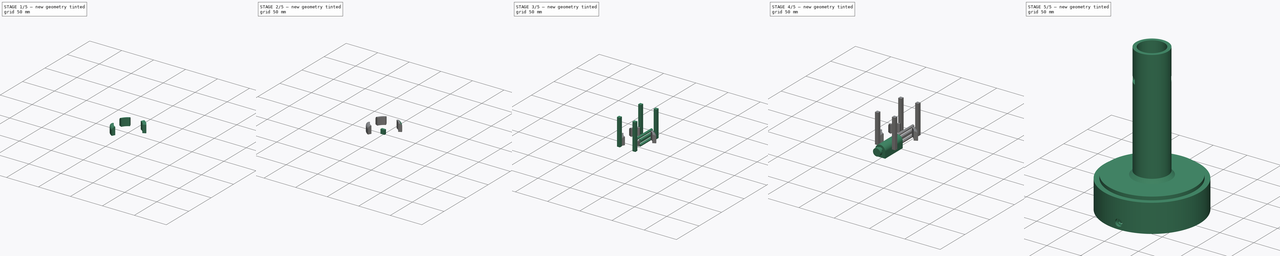
[diagram: build sequence overview — one tinted view per stage of 5, left to right]
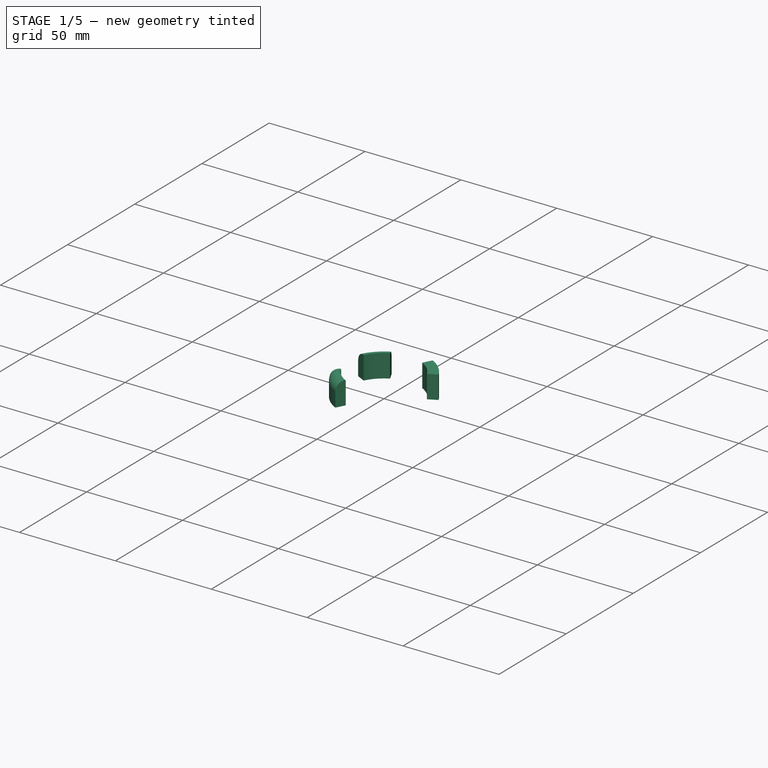
[diagram: stage 1 of 5 — iso view after this stage's code; geometry added in this stage tinted green]
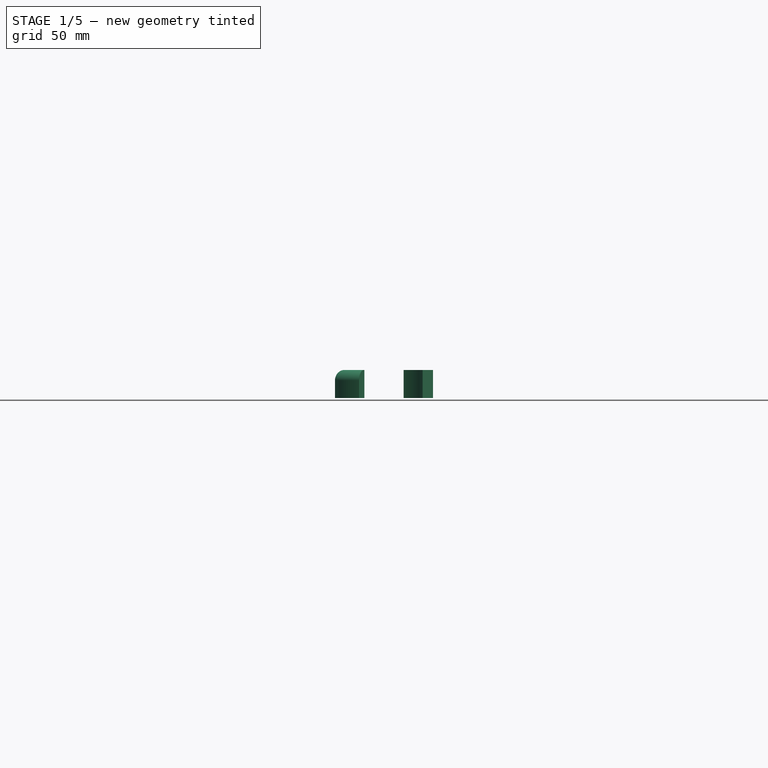
[diagram: stage 1 of 5 — front view after this stage's code; geometry added in this stage tinted green]
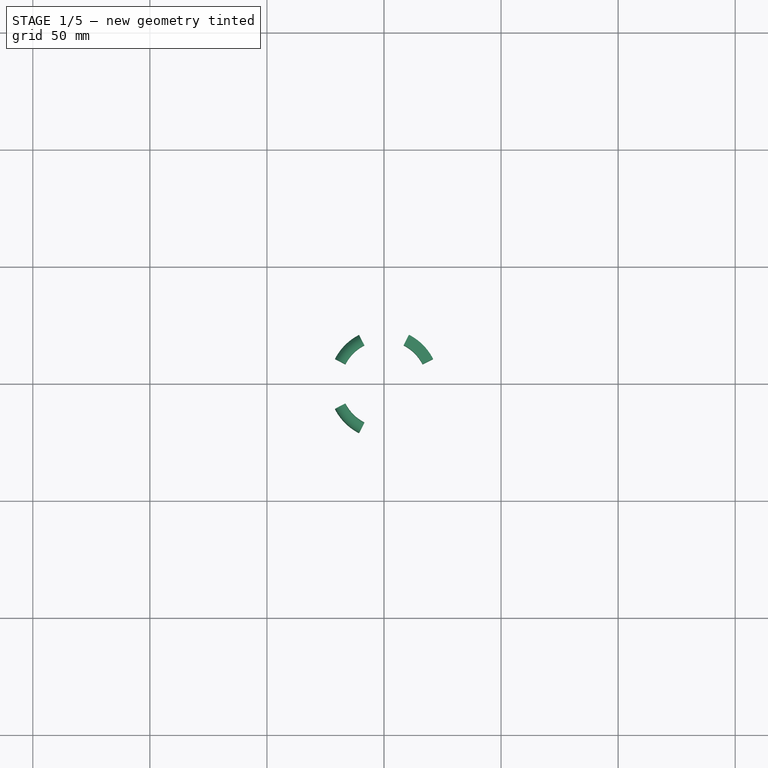
[diagram: stage 1 of 5 — top view after this stage's code; geometry added in this stage tinted green]
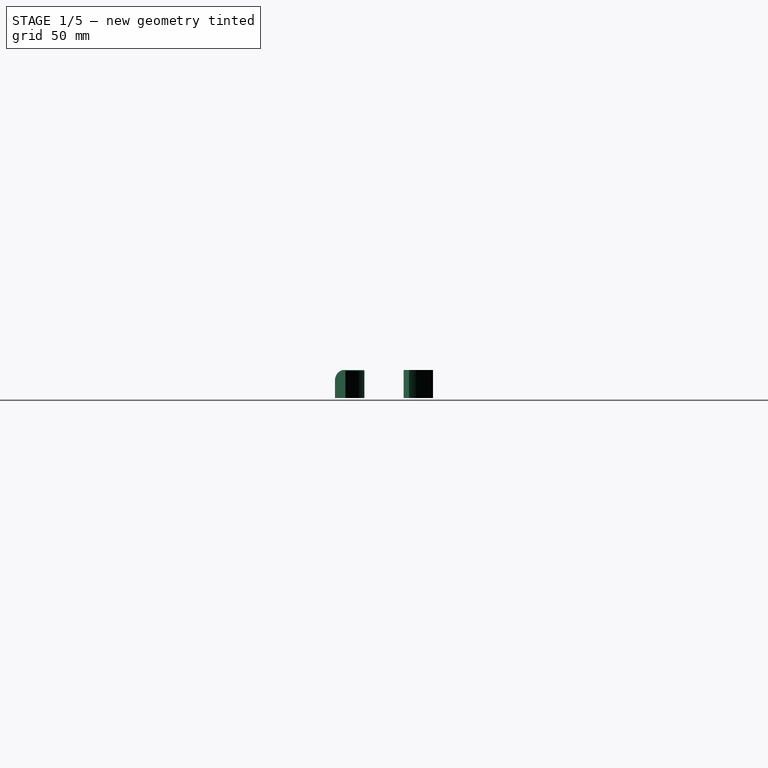
[diagram: stage 1 of 5 — right view after this stage's code; geometry added in this stage tinted green]
FCSTD DOCUMENT  (FreeCAD 1.0R)
Label: GyverLamp1
License: All rights reserved
LicenseURL: https://en.wikipedia.org/wiki/All_rights_reserved
objects: Sketcher::SketchObject×9, PartDesign::Pad×8, PartDesign::Body×6, PartDesign::Fillet×6, PartDesign::Boolean×4, PartDesign::Revolution×1, App::Part×1
note: 77 computed .brp shape members not serialized (recipe doc carries the construction recipe); baked Part::Feature solids carry a one-line shape summary decoded from their .brp

FEATURE [PartDesign::Body] Body005  label="SW Base"
  AllowCompound = true
  Group = -> [Sketch007,Pad005,Sketch008,Pad006]
  Origin = -> Origin007
  Placement = pos=(0,66.9,20) rot=(0,0,1;3.14159rad)
  Tip = -> Pad006
FEATURE [Sketcher::SketchObject] Sketch009
  ArcFitTolerance = 1e-06
  AttachmentSupport = -> [XY_Plane008]
  FullyConstrained = true
  MakeInternals = false
  MapMode = 5
  sketch-geometry (21):
    g0: Circle [constr] CenterX=0 CenterY=0 CenterZ=0 NormalX=0 NormalY=0 NormalZ=1 AngleXU=0 Radius=23.5
    g1: Circle [constr] CenterX=0 CenterY=0 CenterZ=0 NormalX=0 NormalY=0 NormalZ=1 AngleXU=0 Radius=18.5
    g2: LineSegment [constr] StartX=0 StartY=0 StartZ=0 EndX=-10.6688 EndY=20.9387 EndZ=0
    g3: LineSegment [constr] StartX=0 StartY=0 StartZ=0 EndX=-20.9387 EndY=10.6688 EndZ=0
    g4: ArcOfCircle CenterX=0 CenterY=0 CenterZ=0 NormalX=0 NormalY=0 NormalZ=1 AngleXU=0 Radius=23.5 StartAngle=2.04204 EndAngle=2.67035
    g5: LineSegment [constr] StartX=0 StartY=0 StartZ=0 EndX=-20.9387 EndY=-10.6688 EndZ=0
    g6: LineSegment [constr] StartX=0 StartY=0 StartZ=0 EndX=-10.6688 EndY=-20.9387 EndZ=0
    g7: ArcOfCircle CenterX=0 CenterY=0 CenterZ=0 NormalX=0 NormalY=0 NormalZ=1 AngleXU=0 Radius=23.5 StartAngle=3.61283 EndAngle=4.24115
    g8: ArcOfCircle CenterX=0 CenterY=0 CenterZ=0 NormalX=0 NormalY=0 NormalZ=1 AngleXU=0 Radius=18.5 StartAngle=0.471239 EndAngle=1.09956
    g9: ArcOfCircle CenterX=0 CenterY=0 CenterZ=0 NormalX=0 NormalY=0 NormalZ=1 AngleXU=0 Radius=23.5 StartAngle=0.471239 EndAngle=1.09956
    g10: LineSegment StartX=10.6688 StartY=20.9387 StartZ=0 EndX=8.39882 EndY=16.4836 EndZ=0
    g11: LineSegment StartX=20.9387 StartY=10.6688 StartZ=0 EndX=16.4836 EndY=8.39882 EndZ=0
    g12: LineSegment [constr] StartX=10.6688 StartY=20.9387 StartZ=0 EndX=-5e-16 EndY=-6e-16 EndZ=0
    g13: LineSegment [constr] StartX=0 StartY=0 StartZ=0 EndX=20.9387 EndY=10.6688 EndZ=0
    g14: ArcOfCircle [constr] CenterX=0 CenterY=0 CenterZ=0 NormalX=0 NormalY=0 NormalZ=1 AngleXU=0 Radius=18.5 StartAngle=2.04204 EndAngle=2.67035
    g15: ArcOfCircle CenterX=0 CenterY=0 CenterZ=0 NormalX=0 NormalY=0 NormalZ=1 AngleXU=0 Radius=18.5 StartAngle=2.04204 EndAngle=2.67035
    g16: LineSegment StartX=-20.9387 StartY=10.6688 StartZ=0 EndX=-16.4836 EndY=8.39882 EndZ=0
    g17: LineSegment StartX=-8.39882 StartY=16.4836 StartZ=0 EndX=-10.6688 EndY=20.9387 EndZ=0
    g18: ArcOfCircle CenterX=0 CenterY=0 CenterZ=0 NormalX=0 NormalY=0 NormalZ=1 AngleXU=0 Radius=18.5 StartAngle=3.61283 EndAngle=4.24115
    g19: LineSegment StartX=-10.6688 StartY=-20.9387 StartZ=0 EndX=-8.39882 EndY=-16.4836 EndZ=0
    g20: LineSegment StartX=-20.9387 StartY=-10.6688 StartZ=0 EndX=-16.4836 EndY=-8.39882 EndZ=0
  constraints (57):
    c: Diameter(g0) = 47
    c: PointOnObject(g0,g-2)
    c: PointOnObject(g0,g-1)
    c: Diameter(g1) = 37
    c: PointOnObject(g1,g-1)
    c: Coincident(g2,g0)
    c: PointOnObject(g2,g0)
    c: Coincident(g3,g0)
    c: Coincident(g4,g0)
    c: Coincident(g4,g3)
    c: Coincident(g4,g2)
    c: Angle(g2,g3) = 0.628319
    c: Coincident(g5,g0)
    c: Coincident(g6,g0)
    c: PointOnObject(g6,g0)
    c: Coincident(g7,g0)
    c: Coincident(g7,g5)
    c: Coincident(g7,g6)
    c: Angle(g2,g5) = 1.5708
    c: Angle(g5,g6) = 0.628319
    c: Coincident(g8,g1)
    c: PointOnObject(g8,g1)
    c: Coincident(g9,g0)
    c: PointOnObject(g9,g0)
    c: Coincident(g10,g9)
    c: Coincident(g10,g8)
    c: Coincident(g11,g9)
    c: Coincident(g11,g8)
    c: Coincident(g12,g9)
    c: Coincident(g12,g0)
    c: Coincident(g13,g0)
    c: Coincident(g13,g9)
    c: PointOnObject(g8,g13)
    c: PointOnObject(g10,g12)
    c: Angle(g-1,g13) = 0.471239
    c: Angle(g13,g12) = 0.628319
    c: PointOnObject(g1,g-2)
    c: Angle(g13,g2) = 1.5708
    c: Coincident(g14,g0)
    c: PointOnObject(g14,g2)
    c: PointOnObject(g14,g1)
    c: Coincident(g15,g0)
    c: Coincident(g15,g14)
    c: Coincident(g17,g15)
    c: Coincident(g17,g2)
    c: Coincident(g14,g16)
    c: Coincident(g3,g16)
    c: PointOnObject(g14,g3)
    c: PointOnObject(g15,g2)
    c: Coincident(g18,g0)
    c: PointOnObject(g18,g5)
    c: PointOnObject(g18,g1)
    c: Coincident(g19,g6)
    c: Coincident(g19,g18)
    c: Coincident(g20,g5)
    c: Coincident(g20,g18)
    c: PointOnObject(g18,g6)
FEATURE [PartDesign::Pad] Pad007
  Direction = (0,0,1)
  Length = 12
  Length2 = 10
  Profile = -> Sketch009
  ReferenceAxis = -> Sketch009 [N_Axis]
  Refine = true
  Suppressed = false
  Type = 0
FEATURE [PartDesign::Fillet] Fillet
  Base = -> Pad007 [Edge4]
  BaseFeature = -> Pad007
  Radius = 4.5
  Refine = true
  SupportTransform = false
  Suppressed = false
  UseAllEdges = false
FEATURE [PartDesign::Fillet] Fillet001
  Base = -> Fillet [Edge15]
  BaseFeature = -> Fillet
  Radius = 0.45
  Refine = true
  SupportTransform = false
  Suppressed = false
  UseAllEdges = false
FEATURE [PartDesign::Fillet] Fillet002
  Base = -> Fillet001 [Edge25]
  BaseFeature = -> Fillet001
  Radius = 4.5
  Refine = true
  SupportTransform = false
  Suppressed = false
  UseAllEdges = false
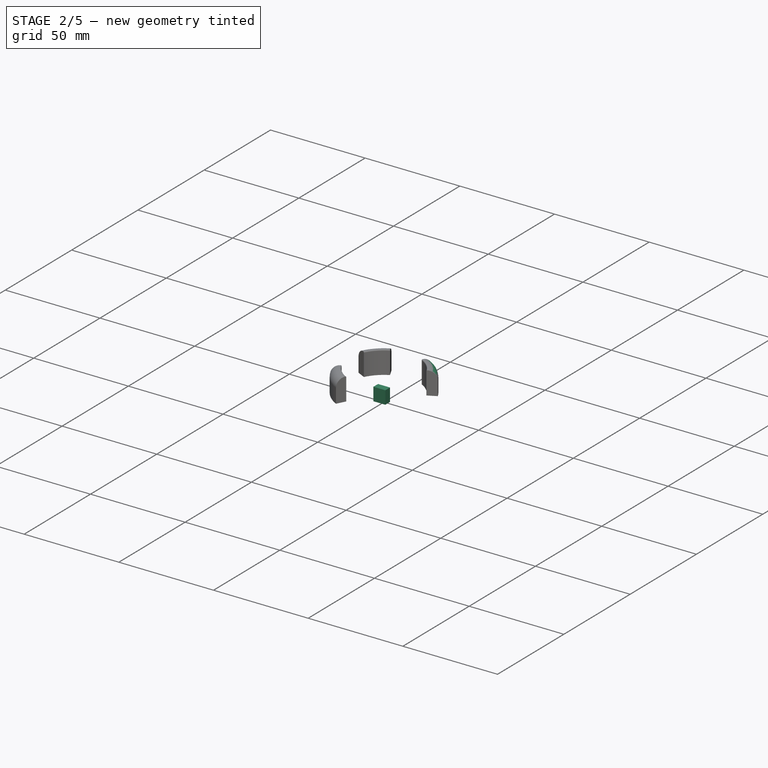
[diagram: stage 2 of 5 — iso view after this stage's code; geometry added in this stage tinted green]
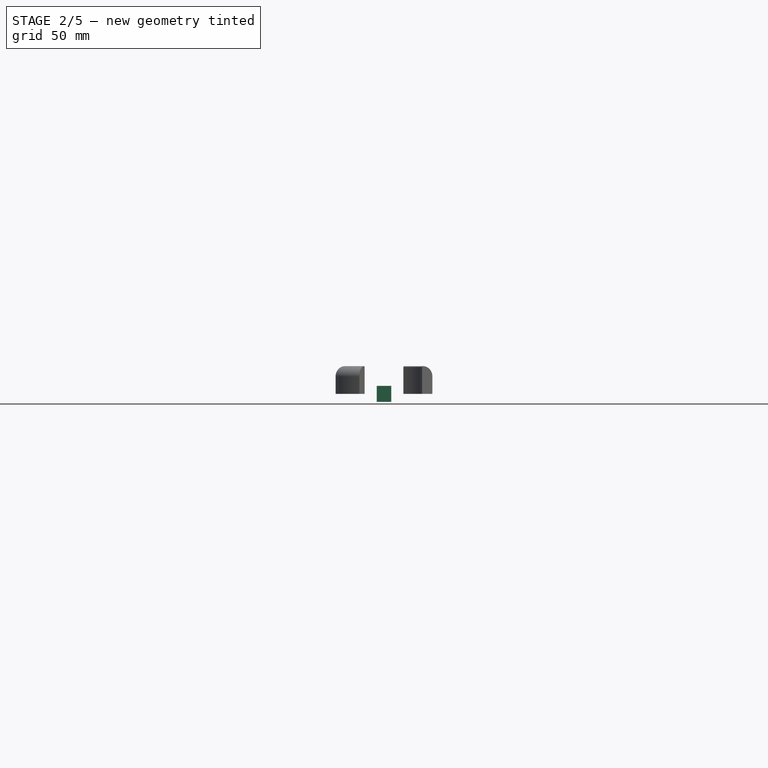
[diagram: stage 2 of 5 — front view after this stage's code; geometry added in this stage tinted green]
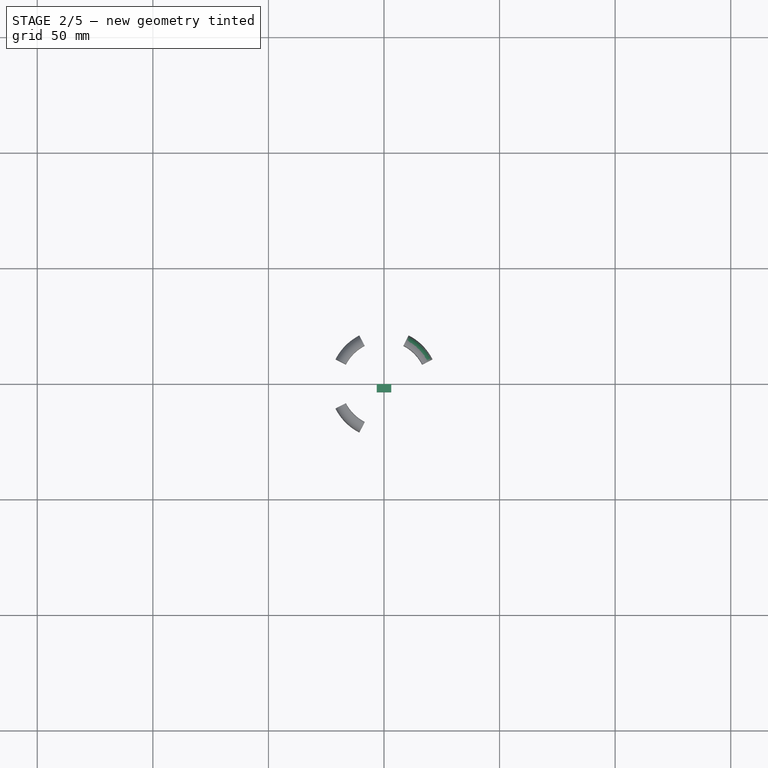
[diagram: stage 2 of 5 — top view after this stage's code; geometry added in this stage tinted green]
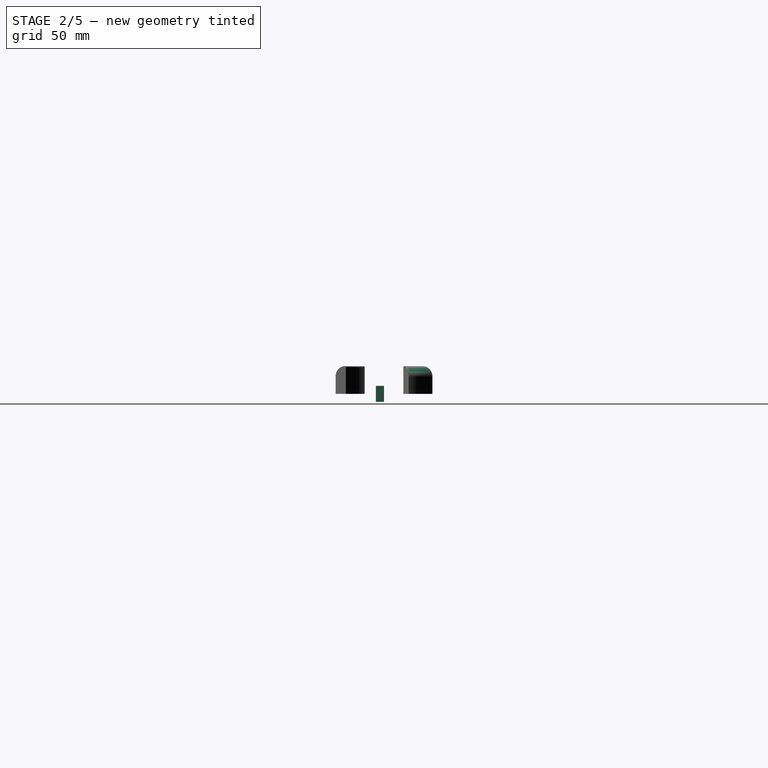
[diagram: stage 2 of 5 — right view after this stage's code; geometry added in this stage tinted green]
FEATURE [Sketcher::SketchObject] Sketch007  label="Base"
  ArcFitTolerance = 1e-06
  AttachmentSupport = -> [XZ_Plane007]
  FullyConstrained = true
  MakeInternals = false
  MapMode = 5
  Placement = pos=(0,0,0) rot=(1,0,0;1.5708rad)
  sketch-geometry (4):
    g0: LineSegment StartX=-3.15 StartY=3.45 StartZ=0 EndX=-3.15 EndY=-3.45 EndZ=0
    g1: LineSegment StartX=-3.15 StartY=-3.45 StartZ=0 EndX=3.15 EndY=-3.45 EndZ=0
    g2: LineSegment StartX=3.15 StartY=-3.45 StartZ=0 EndX=3.15 EndY=3.45 EndZ=0
    g3: LineSegment StartX=3.15 StartY=3.45 StartZ=0 EndX=-3.15 EndY=3.45 EndZ=0
  constraints (10):
    c: Coincident(g0,g1)
    c: Coincident(g1,g2)
    c: Coincident(g2,g3)
    c: Coincident(g3,g0)
    c: Vertical(g2)
    c: Horizontal(g1)
    c: Symmetric(g0,g2,g-2)
    c: Symmetric(g0,g0,g-1)
    c: DistanceY(g0,g0) = 6.9
    c: DistanceX(g3,g3) = 6.3
FEATURE [PartDesign::Pad] Pad005
  Direction = (0,-1,2e-16)
  Length = 3.5
  Length2 = 10
  Placement = pos=(0,0,0) rot=(1,0,0;1.5708rad)
  Profile = -> Sketch007
  ReferenceAxis = -> Sketch007 [N_Axis]
  Refine = true
  Suppressed = false
  Type = 0
FEATURE [PartDesign::Fillet] Fillet003
  Base = -> Fillet002 [Edge45]
  BaseFeature = -> Fillet002
  Radius = 4.5
  Refine = true
  SupportTransform = false
  Suppressed = false
  UseAllEdges = false
FEATURE [PartDesign::Fillet] Fillet004
  Base = -> Fillet003 [Edge28]
  BaseFeature = -> Fillet003
  Radius = 0.45
  Refine = true
  SupportTransform = false
  Suppressed = false
  UseAllEdges = false
FEATURE [PartDesign::Fillet] Fillet005
  Base = -> Fillet004 [Edge31]
  BaseFeature = -> Fillet004
  Radius = 0.45
  Refine = true
  SupportTransform = false
  Suppressed = false
  UseAllEdges = false
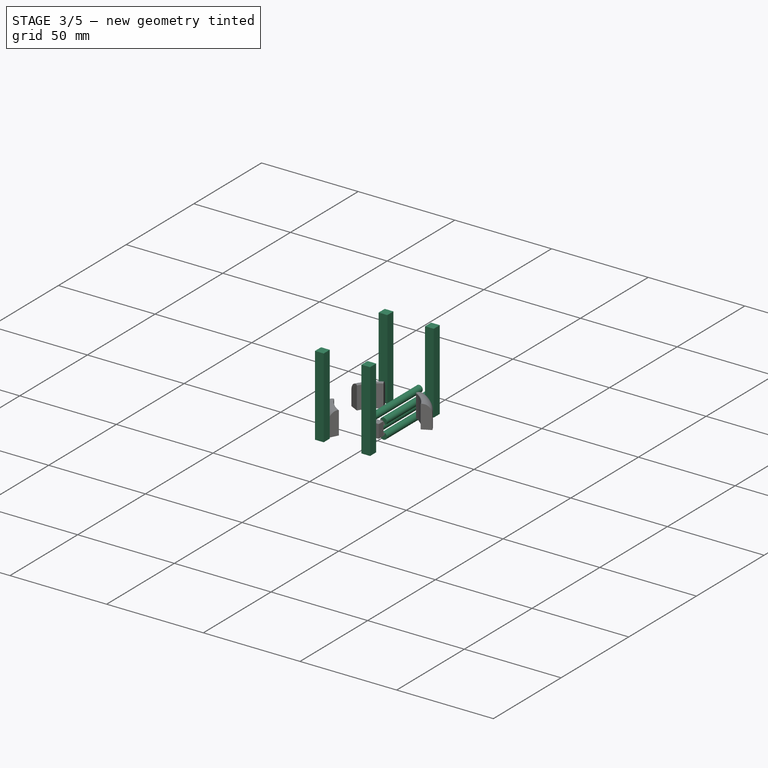
[diagram: stage 3 of 5 — iso view after this stage's code; geometry added in this stage tinted green]
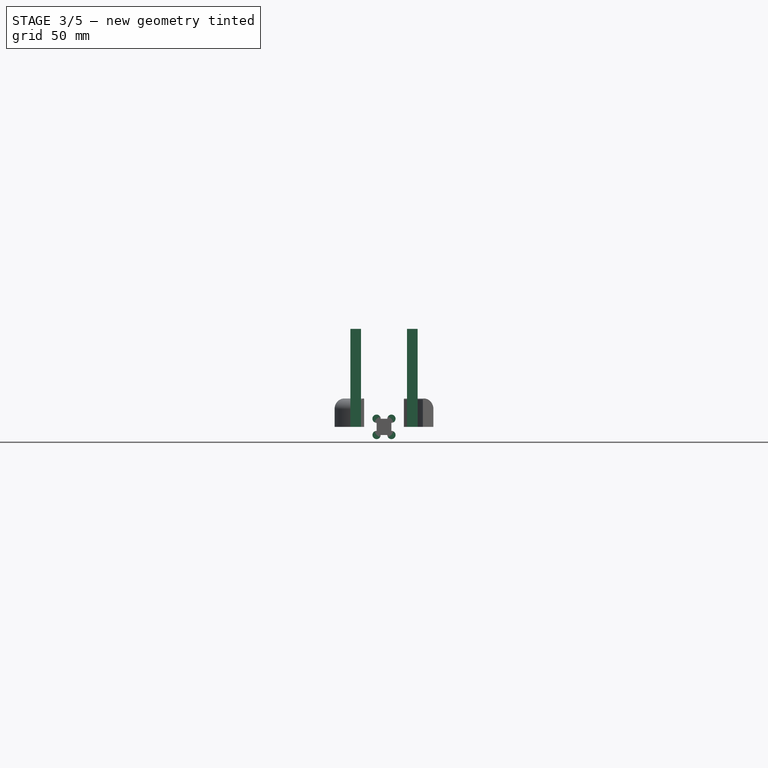
[diagram: stage 3 of 5 — front view after this stage's code; geometry added in this stage tinted green]
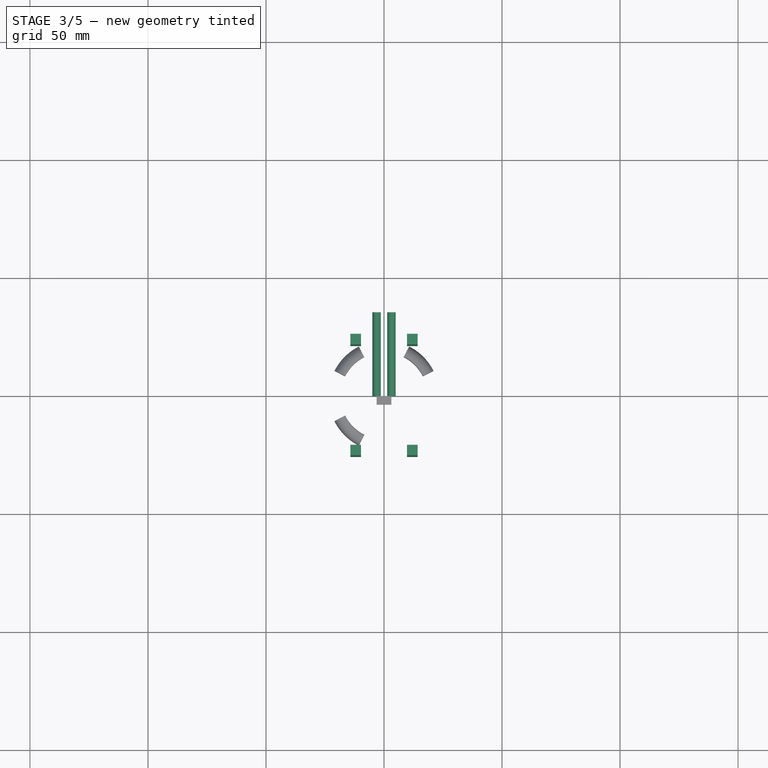
[diagram: stage 3 of 5 — top view after this stage's code; geometry added in this stage tinted green]
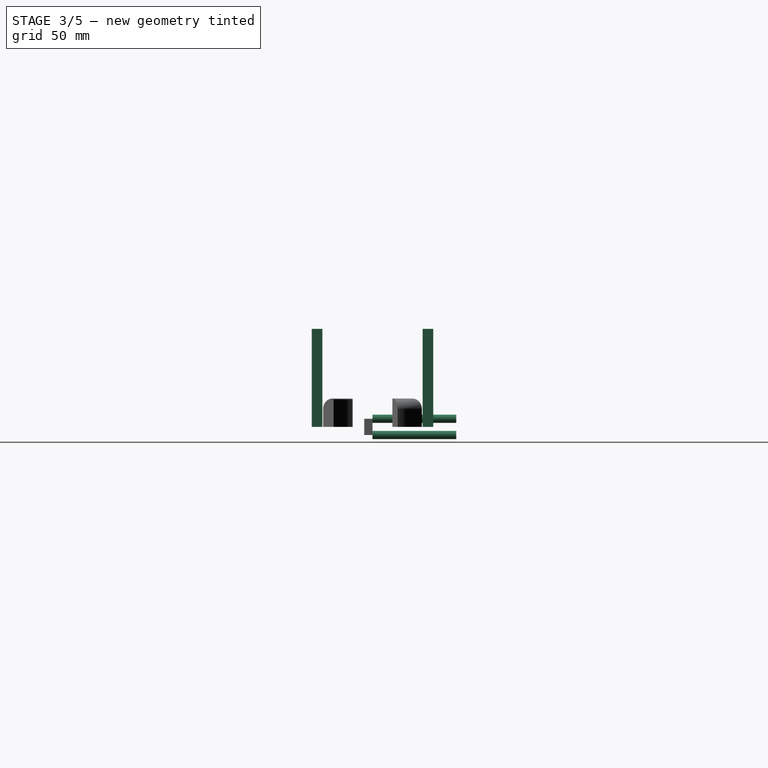
[diagram: stage 3 of 5 — right view after this stage's code; geometry added in this stage tinted green]
FEATURE [Sketcher::SketchObject] Sketch005  label="Pillars"
  ArcFitTolerance = 1e-06
  AttachmentSupport = -> [XY_Plane005]
  FullyConstrained = true
  MakeInternals = false
  MapMode = 5
  sketch-geometry (20):
    g0: LineSegment [constr] StartX=-12 StartY=23.5 StartZ=0 EndX=-12 EndY=-23.5 EndZ=0
    g1: LineSegment [constr] StartX=-12 StartY=-23.5 StartZ=0 EndX=12 EndY=-23.5 EndZ=0
    g2: LineSegment [constr] StartX=12 StartY=-23.5 StartZ=0 EndX=12 EndY=23.5 EndZ=0
    g3: LineSegment [constr] StartX=12 StartY=23.5 StartZ=0 EndX=-12 EndY=23.5 EndZ=0
    g4: LineSegment StartX=14.25 StartY=21.25 StartZ=0 EndX=14.25 EndY=25.75 EndZ=0
    g5: LineSegment StartX=14.25 StartY=25.75 StartZ=0 EndX=9.75 EndY=25.75 EndZ=0
    g6: LineSegment StartX=9.75 StartY=25.75 StartZ=0 EndX=9.75 EndY=21.25 EndZ=0
    g7: LineSegment StartX=9.75 StartY=21.25 StartZ=0 EndX=14.25 EndY=21.25 EndZ=0
    g8: LineSegment StartX=-9.75 StartY=-25.75 StartZ=0 EndX=-9.75 EndY=-21.25 EndZ=0
    g9: LineSegment StartX=-9.75 StartY=-21.25 StartZ=0 EndX=-14.25 EndY=-21.25 EndZ=0
    g10: LineSegment StartX=-14.25 StartY=-21.25 StartZ=0 EndX=-14.25 EndY=-25.75 EndZ=0
    g11: LineSegment StartX=-14.25 StartY=-25.75 StartZ=0 EndX=-9.75 EndY=-25.75 EndZ=0
    g12: LineSegment StartX=14.25 StartY=-25.75 StartZ=0 EndX=14.25 EndY=-21.25 EndZ=0
    g13: LineSegment StartX=14.25 StartY=-21.25 StartZ=0 EndX=9.75 EndY=-21.25 EndZ=0
    g14: LineSegment StartX=9.75 StartY=-21.25 StartZ=0 EndX=9.75 EndY=-25.75 EndZ=0
    g15: LineSegment StartX=9.75 StartY=-25.75 StartZ=0 EndX=14.25 EndY=-25.75 EndZ=0
    g16: LineSegment StartX=-14.25 StartY=25.75 StartZ=0 EndX=-14.25 EndY=21.25 EndZ=0
    g17: LineSegment StartX=-14.25 StartY=21.25 StartZ=0 EndX=-9.75 EndY=21.25 EndZ=0
    g18: LineSegment StartX=-9.75 StartY=21.25 StartZ=0 EndX=-9.75 EndY=25.75 EndZ=0
    g19: LineSegment StartX=-9.75 StartY=25.75 StartZ=0 EndX=-14.25 EndY=25.75 EndZ=0
  constraints (49):
    c: Coincident(g0,g1)
    c: Coincident(g1,g2)
    c: Coincident(g2,g3)
    c: Coincident(g4,g5)
    c: Coincident(g5,g6)
    c: Coincident(g6,g7)
    c: Coincident(g7,g4)
    c: Vertical(g6)
    c: Horizontal(g7)
    c: Coincident(g8,g9)
    c: Coincident(g9,g10)
    c: Coincident(g10,g11)
    c: Coincident(g11,g8)
    c: Vertical(g8)
    c: Horizontal(g9)
    c: Coincident(g12,g13)
    c: Coincident(g13,g14)
    c: Coincident(g14,g15)
    c: Coincident(g15,g12)
    c: Vertical(g14)
    c: Horizontal(g13)
    c: Coincident(g16,g17)
    c: Coincident(g17,g18)
    c: Coincident(g18,g19)
    c: Coincident(g19,g16)
    c: Vertical(g16)
    c: Horizontal(g19)
    c: Symmetric(g17,g16,g0)
    c: Symmetric(g4,g5,g2)
    c: Symmetric(g12,g14,g2)
    c: Symmetric(g8,g10,g0)
    c: Symmetric(g9,g10,g1)
    c: Symmetric(g12,g12,g1)
    c: Symmetric(g4,g4,g3)
    c: Symmetric(g18,g17,g3)
    c: Coincident(g0,g3)
    c: Equal(g19,g5)
    c: Equal(g5,g13)
    c: Equal(g13,g9)
    c: Equal(g6,g14)
    c: Equal(g14,g16)
    c: Equal(g16,g8)
    c: Symmetric(g0,g2,g-2)
    c: Symmetric(g0,g1,g-2)
    c: Symmetric(g2,g1,g-1)
    c: DistanceY(g1,g2) = 47
    c: DistanceX(g0,g1) = 24
    c: Distance(g13,g12) = 4.5
    c: Distance(g14,g13) = 4.5
FEATURE [PartDesign::Pad] Pad003  label="PIllars"
  Direction = (0,0,1)
  Length = 41.5
  Length2 = 10
  Profile = -> Sketch005
  ReferenceAxis = -> Sketch005 [N_Axis]
  Refine = true
  Suppressed = false
  Type = 0
FEATURE [Sketcher::SketchObject] Sketch006  label="Holes"
  ArcFitTolerance = 1e-06
  AttachmentSupport = -> [XY_Plane006]
  FullyConstrained = true
  MakeInternals = false
  MapMode = 5
  sketch-geometry (8):
    g0: LineSegment [constr] StartX=-12 StartY=23.5 StartZ=0 EndX=-12 EndY=-23.5 EndZ=0
    g1: LineSegment [constr] StartX=-12 StartY=-23.5 StartZ=0 EndX=12 EndY=-23.5 EndZ=0
    g2: LineSegment [constr] StartX=12 StartY=-23.5 StartZ=0 EndX=12 EndY=23.5 EndZ=0
    g3: LineSegment [constr] StartX=12 StartY=23.5 StartZ=0 EndX=-12 EndY=23.5 EndZ=0
    g4: Circle CenterX=-12 CenterY=23.5 CenterZ=0 NormalX=0 NormalY=0 NormalZ=1 AngleXU=0 Radius=0.6
    g5: Circle CenterX=12 CenterY=23.5 CenterZ=0 NormalX=0 NormalY=0 NormalZ=1 AngleXU=0 Radius=0.6
    g6: Circle CenterX=12 CenterY=-23.5 CenterZ=0 NormalX=0 NormalY=0 NormalZ=1 AngleXU=0 Radius=0.6
    g7: Circle CenterX=-12 CenterY=-23.5 CenterZ=0 NormalX=0 NormalY=0 NormalZ=1 AngleXU=0 Radius=0.6
  constraints (22):
    c: Coincident(g0,g1)
    c: Coincident(g1,g2)
    c: Coincident(g2,g3)
    c: Coincident(g3,g0)
    c: Vertical(g0)
    c: Vertical(g2)
    c: Horizontal(g1)
    c: Horizontal(g3)
    c: PointOnObject(g5,g2)
    c: PointOnObject(g5,g3)
    c: PointOnObject(g4,g0)
    c: PointOnObject(g7,g0)
    c: PointOnObject(g7,g1)
    c: PointOnObject(g6,g1)
    c: Equal(g4,g5)
    c: Equal(g5,g6)
    c: Equal(g6,g7)
    c: Diameter(g5) = 1.2
    c: Symmetric(g5,g4,g-2)
    c: Symmetric(g5,g6,g-1)
    c: DistanceY(g2,g2) = 47
    c: DistanceX(g3,g3) = 24
FEATURE [PartDesign::Pad] Pad004
  Direction = (0,0,1)
  Length = 6
  Length2 = 10
  Profile = -> Sketch006
  ReferenceAxis = -> Sketch006 [N_Axis]
  Refine = true
  Suppressed = false
  Type = 0
FEATURE [Sketcher::SketchObject] Sketch008
  ArcFitTolerance = 1e-06
  AttachmentSupport = -> [Pad005]
  ExternalGeometry = -> [Pad005]
  FullyConstrained = true
  MakeInternals = false
  MapMode = 5
  Placement = pos=(0,0,0) rot=(-1,0,0;1.5708rad)
  sketch-geometry (12):
    g0: Circle CenterX=-3.15 CenterY=3.45 CenterZ=0 NormalX=0 NormalY=0 NormalZ=1 AngleXU=0 Radius=1.75
    g1: Circle CenterX=3.15 CenterY=3.45 CenterZ=0 NormalX=0 NormalY=0 NormalZ=1 AngleXU=0 Radius=1.75
    g2: Circle CenterX=3.15 CenterY=-3.45 CenterZ=0 NormalX=0 NormalY=0 NormalZ=1 AngleXU=0 Radius=1.75
    g3: Circle CenterX=-3.15 CenterY=-3.45 CenterZ=0 NormalX=0 NormalY=0 NormalZ=1 AngleXU=0 Radius=1.75
    g4: LineSegment [constr] StartX=-3.15 StartY=3.45 StartZ=0 EndX=-3.15 EndY=1.7 EndZ=0
    g5: LineSegment [constr] StartX=1.4 StartY=3.45 StartZ=0 EndX=3.15 EndY=3.45 EndZ=0
    g6: LineSegment [constr] StartX=-3.15 StartY=-3.45 StartZ=0 EndX=-3.15 EndY=-1.7 EndZ=0
    g7: LineSegment [constr] StartX=-3.15 StartY=3.45 StartZ=0 EndX=-1.4 EndY=3.45 EndZ=0
    g8: LineSegment [constr] StartX=3.15 StartY=3.45 StartZ=0 EndX=3.15 EndY=1.7 EndZ=0
    g9: LineSegment [constr] StartX=-3.15 StartY=-3.45 StartZ=0 EndX=-1.4 EndY=-3.45 EndZ=0
    g10: LineSegment [constr] StartX=3.15 StartY=-3.45 StartZ=0 EndX=1.4 EndY=-3.45 EndZ=0
    g11: LineSegment [constr] StartX=3.15 StartY=-3.45 StartZ=0 EndX=3.15 EndY=-1.7 EndZ=0
  constraints (36):
    c: Diameter(g3) = 3.5
    c: Equal(g0,g1)
    c: Equal(g1,g2)
    c: Equal(g2,g3)
    c: PointOnObject(g0,g-3)
    c: PointOnObject(g1,g-3)
    c: PointOnObject(g0,g-4)
    c: PointOnObject(g1,g-6)
    c: PointOnObject(g2,g-6)
    c: PointOnObject(g2,g-5)
    c: PointOnObject(g3,g-4)
    c: PointOnObject(g3,g-5)
    c: Coincident(g4,g0)
    c: PointOnObject(g4,g0)
    c: Vertical(g4)
    c: PointOnObject(g5,g1)
    c: Coincident(g5,g1)
    c: Horizontal(g5)
    c: Coincident(g6,g3)
    c: PointOnObject(g6,g-4)
    c: PointOnObject(g6,g3)
    c: Coincident(g7,g0)
    c: PointOnObject(g7,g-3)
    c: PointOnObject(g7,g0)
    c: Coincident(g8,g1)
    c: PointOnObject(g8,g-6)
    c: PointOnObject(g8,g1)
    c: Coincident(g9,g3)
    c: PointOnObject(g9,g-5)
    c: PointOnObject(g9,g3)
    c: Coincident(g10,g2)
    c: PointOnObject(g10,g-5)
    c: PointOnObject(g10,g2)
    c: Coincident(g11,g2)
    c: PointOnObject(g11,g-6)
    c: PointOnObject(g11,g2)
FEATURE [PartDesign::Pad] Pad006
  BaseFeature = -> Pad005
  Direction = (0,1,2e-16)
  Length = 35.5
  Length2 = 10
  Placement = pos=(0,0,0) rot=(1,0,0;1.5708rad)
  Profile = -> Sketch008
  ReferenceAxis = -> Sketch008 [N_Axis]
  Refine = true
  Suppressed = false
  Type = 0
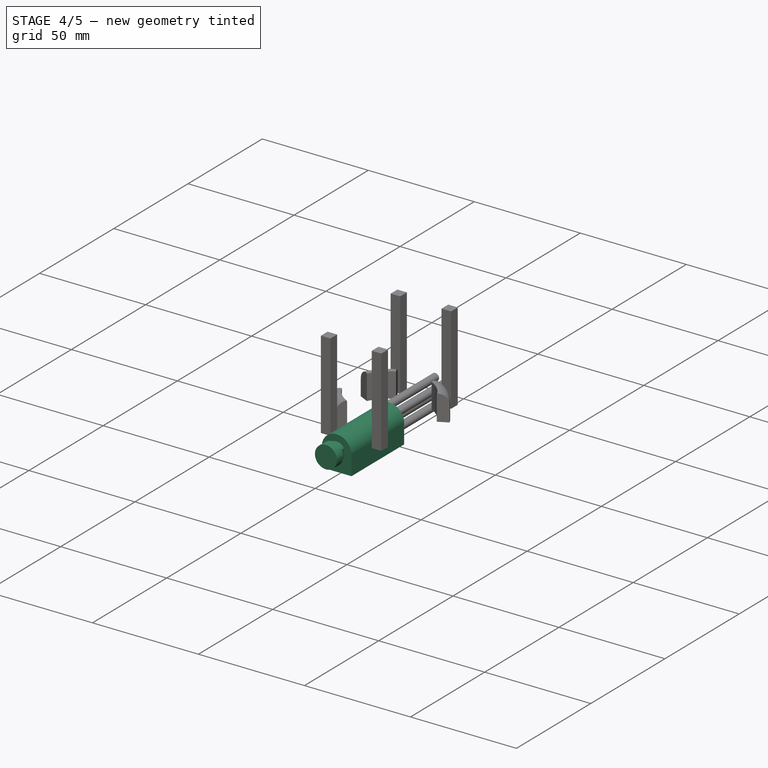
[diagram: stage 4 of 5 — iso view after this stage's code; geometry added in this stage tinted green]
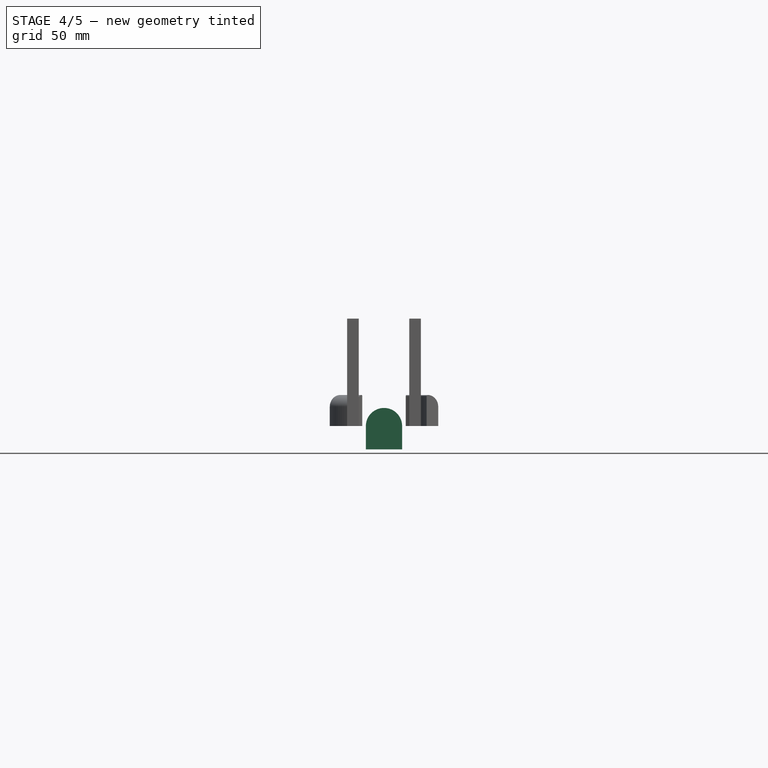
[diagram: stage 4 of 5 — front view after this stage's code; geometry added in this stage tinted green]
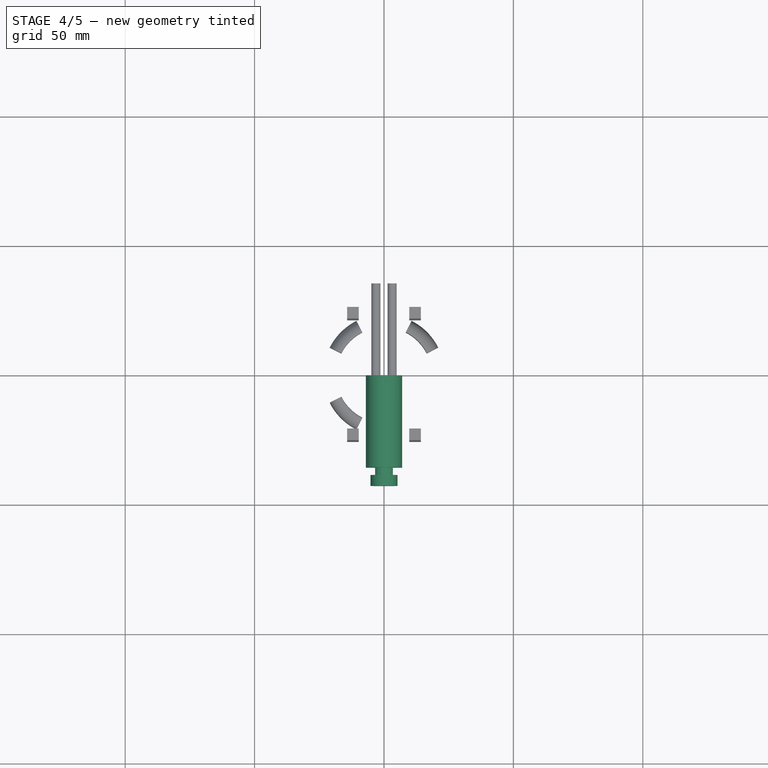
[diagram: stage 4 of 5 — top view after this stage's code; geometry added in this stage tinted green]
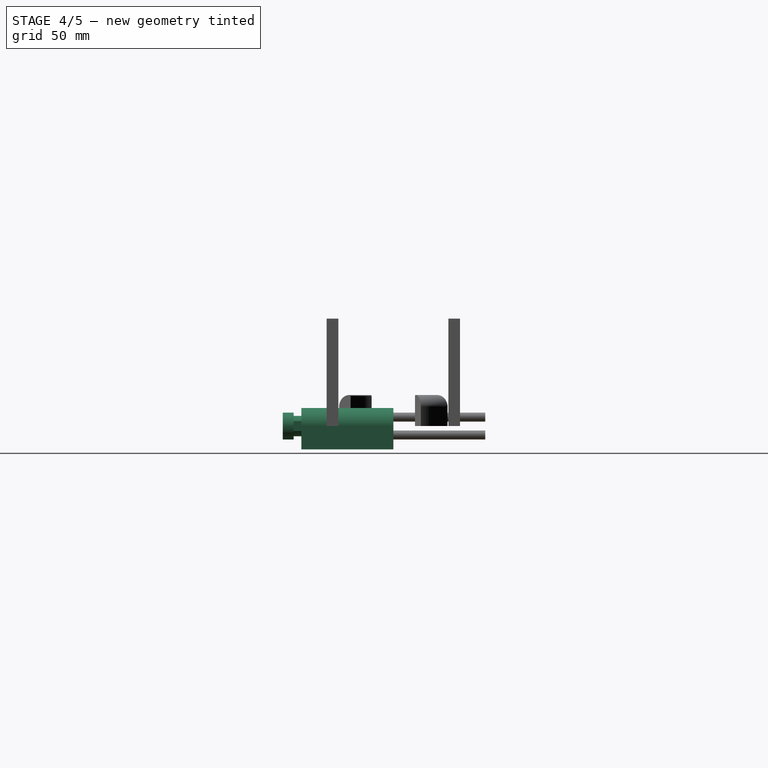
[diagram: stage 4 of 5 — right view after this stage's code; geometry added in this stage tinted green]
FEATURE [Sketcher::SketchObject] Sketch001  label="nut channel"
  ArcFitTolerance = 1e-06
  AttachmentSupport = -> [XZ_Plane002]
  FullyConstrained = true
  MakeInternals = false
  MapMode = 5
  Placement = pos=(0,0,0) rot=(1,0,0;1.5708rad)
  sketch-geometry (7):
    g0: LineSegment StartX=-7 StartY=0 StartZ=0 EndX=-7 EndY=-7 EndZ=0
    g1: LineSegment StartX=7 StartY=-7 StartZ=0 EndX=7 EndY=0 EndZ=0
    g2: LineSegment StartX=-7 StartY=-7 StartZ=0 EndX=-7 EndY=-9 EndZ=0
    g3: LineSegment StartX=-7 StartY=-9 StartZ=0 EndX=7 EndY=-9 EndZ=0
    g4: LineSegment StartX=7 StartY=-9 StartZ=0 EndX=7 EndY=-7 EndZ=0
    g5: ArcOfCircle CenterX=0 CenterY=0 CenterZ=0 NormalX=0 NormalY=0 NormalZ=1 AngleXU=0 Radius=7 StartAngle=1.533e-12 EndAngle=3.14159
    g6: LineSegment [constr] StartX=-7 StartY=0 StartZ=0 EndX=7 EndY=0 EndZ=0
  constraints (21):
    c: Vertical(g0)
    c: Vertical(g1)
    c: Coincident(g2,g3)
    c: Coincident(g3,g4)
    c: Vertical(g2)
    c: Vertical(g4)
    c: Horizontal(g3)
    c: Coincident(g1,g4)
    c: Coincident(g0,g2)
    c: Horizontal(g0,g1)
    c: Coincident(g1,g5)
    c: Coincident(g0,g5)
    c: Coincident(g6,g0)
    c: Coincident(g6,g1)
    c: Horizontal(g6)
    c: DistanceY(g0,g0) = 7
    c: DistanceX(g0,g1) = 14
    c: DistanceY(g3,g1) = 9
    c: PointOnObject(g5,g-1)
    c: PointOnObject(g5,g-2)
    c: PointOnObject(g5,g6)
FEATURE [PartDesign::Pad] Pad
  Direction = (0,-1,2e-16)
  Length = 35.5
  Length2 = 10
  Placement = pos=(0,0,0) rot=(1,0,0;1.5708rad)
  Profile = -> Sketch001
  ReferenceAxis = -> Sketch001 [N_Axis]
  Refine = true
  Suppressed = false
  Type = 0
FEATURE [Sketcher::SketchObject] Sketch002  label="thread channel"
  ArcFitTolerance = 1e-06
  AttachmentSupport = -> [Pad]
  FullyConstrained = true
  MakeInternals = false
  MapMode = 5
  Placement = pos=(0,-35.5,0) rot=(1,0,0;1.5708rad)
  sketch-geometry (4):
    g0: ArcOfCircle CenterX=0 CenterY=0 CenterZ=0 NormalX=0 NormalY=0 NormalZ=1 AngleXU=0 Radius=3.95 StartAngle=0.508619 EndAngle=2.63297
    g1: ArcOfCircle CenterX=0 CenterY=0 CenterZ=0 NormalX=0 NormalY=0 NormalZ=1 AngleXU=0 Radius=3.95 StartAngle=3.65021 EndAngle=5.77457
    g2: LineSegment StartX=-3.45 StartY=1.92354 StartZ=0 EndX=-3.45 EndY=-1.92354 EndZ=0
    g3: LineSegment StartX=3.45 StartY=1.92354 StartZ=0 EndX=3.45 EndY=-1.92354 EndZ=0
  constraints (12):
    c: Diameter(g0) = 7.9
    c: Coincident(g0,g-1)
    c: Equal(g0,g1)
    c: Coincident(g0,g1)
    c: Coincident(g2,g0)
    c: Coincident(g2,g1)
    c: Coincident(g3,g0)
    c: Coincident(g3,g1)
    c: Distance(g3,g2) = 6.9
    c: Parallel(g3,g2)
    c: Parallel(g-2,g3)
    c: Equal(g3,g2)
FEATURE [PartDesign::Pad] Pad001
  BaseFeature = -> Pad
  Direction = (0,-1,2e-16)
  Length = 3
  Length2 = 10
  Placement = pos=(0,0,0) rot=(1,0,0;1.5708rad)
  Profile = -> Sketch002
  ReferenceAxis = -> Sketch002 [N_Axis]
  Refine = true
  Suppressed = false
  Type = 0
FEATURE [Sketcher::SketchObject] Sketch003  label="recess"
  ArcFitTolerance = 1e-06
  AttachmentSupport = -> [Pad001]
  FullyConstrained = true
  MakeInternals = false
  MapMode = 5
  Placement = pos=(0,-38.5,0) rot=(1,0,0;1.5708rad)
  sketch-geometry (1):
    g0: Circle CenterX=0 CenterY=0 CenterZ=0 NormalX=0 NormalY=0 NormalZ=1 AngleXU=0 Radius=5.2
  constraints (2):
    c: Diameter(g0) = 10.4
    c: Coincident(g0,g-1)
FEATURE [PartDesign::Pad] Pad002
  BaseFeature = -> Pad001
  Direction = (0,-1,2e-16)
  Length = 4.2
  Length2 = 10
  Placement = pos=(0,0,0) rot=(1,0,0;1.5708rad)
  Profile = -> Sketch003
  ReferenceAxis = -> Sketch003 [N_Axis]
  Refine = true
  Suppressed = false
  Type = 0
FEATURE [PartDesign::Body] Body004  label="MUC Mount Screw Holes"
  AllowCompound = true
  Group = -> [Sketch006,Pad004]
  Origin = -> Origin006
  Tip = -> Pad004
FEATURE [PartDesign::Boolean] Boolean001  label="Cutout Screw Holes"
  BaseFeature = -> Pad003
  Group = -> [Body004]
  Refine = true
  Suppressed = false
  Type = 1
  UsePlacement = true
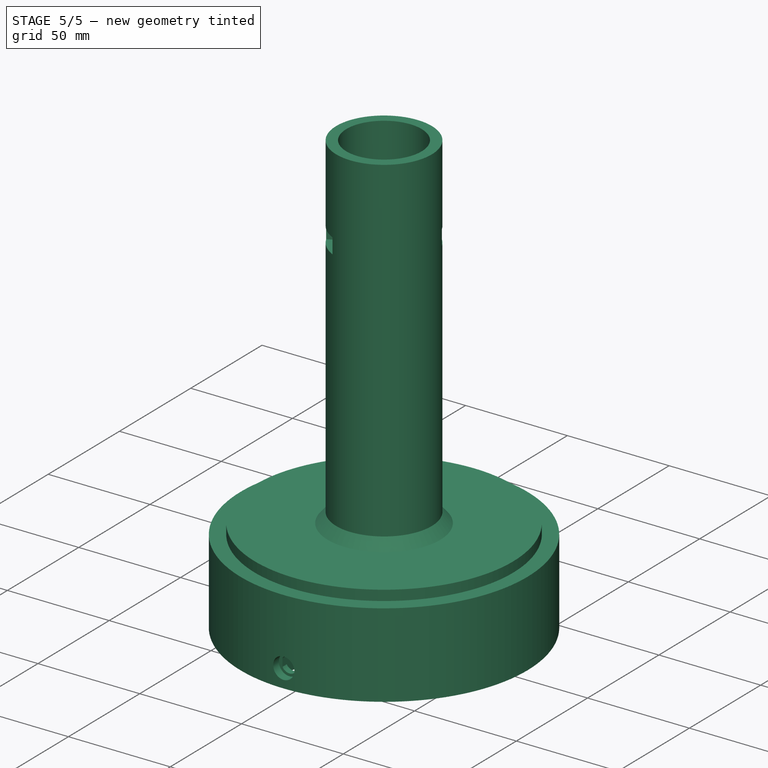
[diagram: stage 5 of 5 — iso view after this stage's code; geometry added in this stage tinted green]
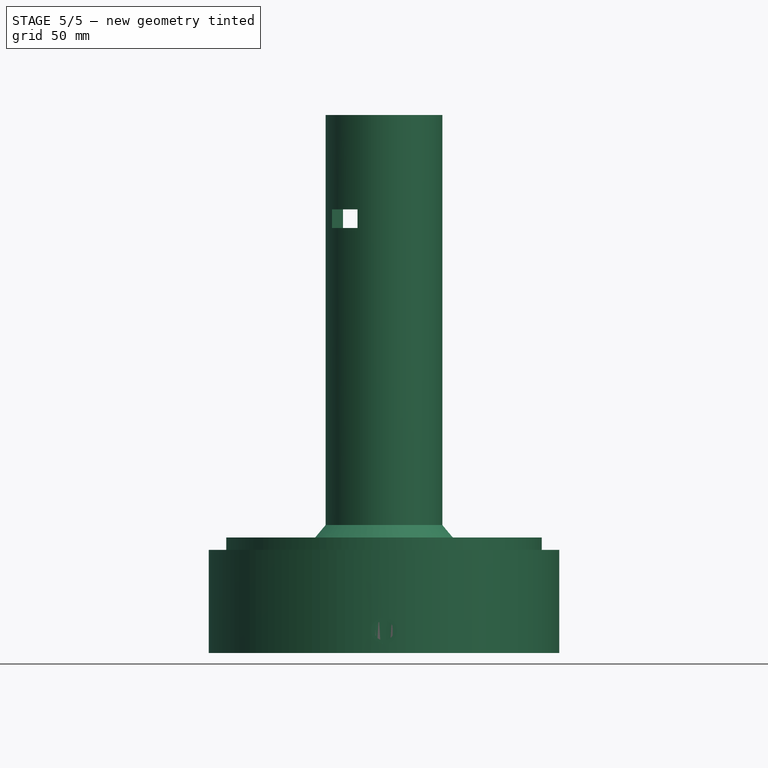
[diagram: stage 5 of 5 — front view after this stage's code; geometry added in this stage tinted green]
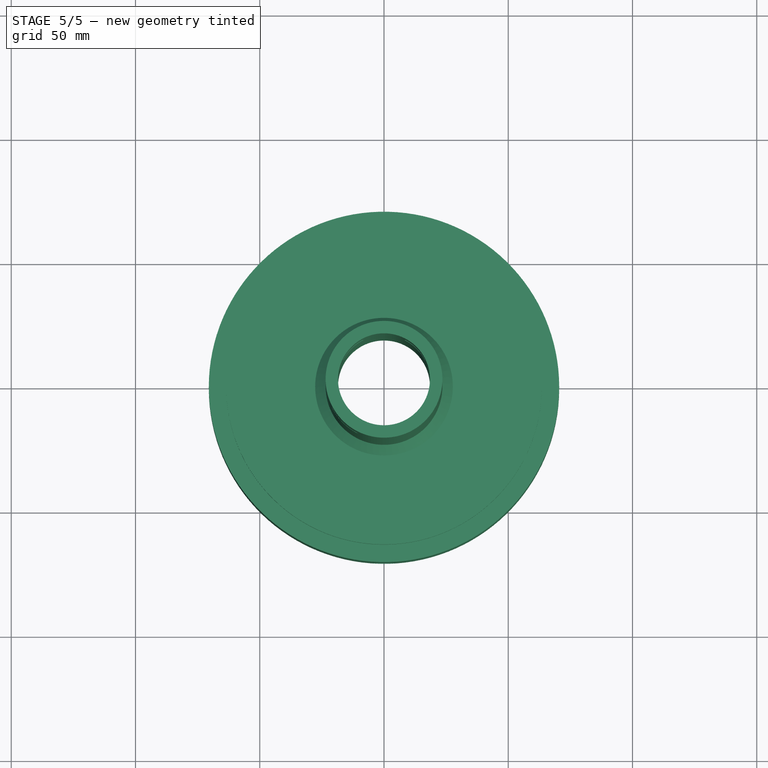
[diagram: stage 5 of 5 — top view after this stage's code; geometry added in this stage tinted green]
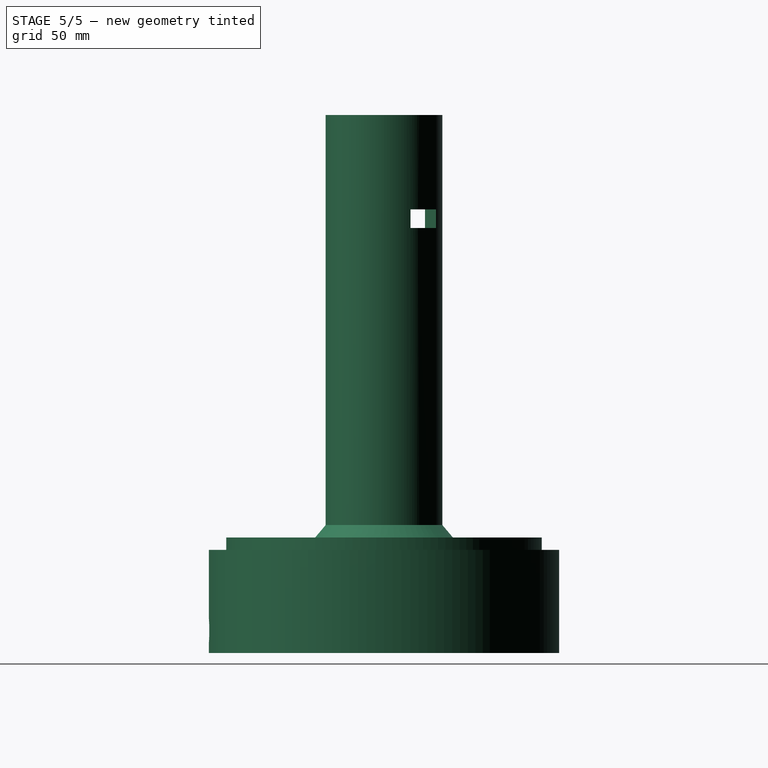
[diagram: stage 5 of 5 — right view after this stage's code; geometry added in this stage tinted green]
FEATURE [Sketcher::SketchObject] Sketch
  ArcFitTolerance = 1e-06
  AttachmentSupport = -> [XZ_Plane001]
  FullyConstrained = true
  MakeInternals = false
  MapMode = 5
  Placement = pos=(0,0,0) rot=(1,0,0;1.5708rad)
  sketch-geometry (15):
    g0: LineSegment StartX=-70.5 StartY=0 StartZ=0 EndX=-70.5 EndY=41.5 EndZ=0
    g1: LineSegment StartX=-70.5 StartY=41.5 StartZ=0 EndX=-63.5 EndY=41.5 EndZ=0
    g2: LineSegment StartX=-63.5 StartY=41.5 StartZ=0 EndX=-63.5 EndY=46.5 EndZ=0
    g3: LineSegment [constr] StartX=-63.5 StartY=46.5 StartZ=0 EndX=-23.5 EndY=46.5 EndZ=0
    g4: LineSegment [constr] StartX=-23.5 StartY=46.5 StartZ=0 EndX=-23.5 EndY=216.5 EndZ=0
    g5: LineSegment StartX=-23.5 StartY=216.5 StartZ=0 EndX=-18.5 EndY=216.5 EndZ=0
    g6: LineSegment StartX=-18.5 StartY=216.5 StartZ=0 EndX=-18.5 EndY=49.6639 EndZ=0
    g7: LineSegment StartX=-35 StartY=30 StartZ=0 EndX=-35 EndY=0 EndZ=0
    g8: LineSegment StartX=-35 StartY=0 StartZ=0 EndX=-70.5 EndY=0 EndZ=0
    g9: LineSegment StartX=-35 StartY=30 StartZ=0 EndX=-18.5 EndY=49.6639 EndZ=0
    g10: LineSegment StartX=-27.6955 StartY=46.5 StartZ=0 EndX=-23.5 EndY=51.5 EndZ=0
    g11: LineSegment [constr] StartX=-23.5 StartY=51.5 StartZ=0 EndX=-23.5 EndY=46.5 EndZ=0
    g12: LineSegment [constr] StartX=-23.5 StartY=46.5 StartZ=0 EndX=-27.6955 EndY=46.5 EndZ=0
    g13: LineSegment StartX=-63.5 StartY=46.5 StartZ=0 EndX=-27.6955 EndY=46.5 EndZ=0
    g14: LineSegment StartX=-23.5 StartY=216.5 StartZ=0 EndX=-23.5 EndY=51.5 EndZ=0
  constraints (42):
    c: PointOnObject(g0,g-1)
    c: Vertical(g0)
    c: Coincident(g0,g1)
    c: Horizontal(g1)
    c: Coincident(g1,g2)
    c: Vertical(g2)
    c: Coincident(g2,g3)
    c: Coincident(g3,g4)
    c: Vertical(g4)
    c: Coincident(g4,g5)
    c: Horizontal(g5)
    c: Coincident(g5,g6)
    c: Vertical(g6)
    c: Vertical(g7)
    c: Coincident(g7,g8)
    c: Coincident(g8,g0)
    c: Horizontal(g8)
    c: Coincident(g9,g7)
    c: Coincident(g9,g6)
    c: DistanceX(g0,g1) = 7
    c: Horizontal(g3)
    c: DistanceY(g4,g4) = 170
    c: DistanceY(g7,g7) = 30
    c: Angle(g7,g9) = 2.44346
    c: Distance(g2,g2) = 5
    c: Distance(g-2,g4) = 23.5
    c: Distance(g5,g5) = 5
    c: DistanceX(g2,g3) = 40
    c: DistanceY(g0,g0) = 41.5
    c: Distance(g-2,g7) = 35
    c: PointOnObject(g10,g3)
    c: PointOnObject(g10,g4)
    c: Coincident(g10,g11)
    c: Coincident(g11,g3)
    c: Coincident(g11,g12)
    c: Coincident(g12,g10)
    c: Angle(g10,g3) = 2.26893
    c: DistanceY(g10,g4) = 165
    c: Coincident(g13,g2)
    c: Coincident(g13,g10)
    c: Coincident(g14,g4)
    c: Coincident(g14,g10)
FEATURE [PartDesign::Revolution] Revolution
  Angle = 360
  Angle2 = 60
  Axis = (0,2e-16,1)
  Base = (0,0,0)
  Placement = pos=(0,0,0) rot=(1,0,0;1.5708rad)
  Profile = -> Sketch
  ReferenceAxis = -> Sketch [V_Axis]
  Refine = true
  Suppressed = false
  Type = 0
FEATURE [PartDesign::Body] Body001  label="PS Jack"
  AllowCompound = false
  Group = -> [Sketch001,Pad,Sketch002,Pad001,Sketch003,Pad002]
  Origin = -> Origin002
  Placement = pos=(0,-27.8,9) rot=(0,0,1;0rad)
  Tip = -> Pad002
FEATURE [PartDesign::Boolean] Boolean
  BaseFeature = -> Revolution
  Group = -> [Body001]
  Refine = true
  Suppressed = false
  Type = 1
  UsePlacement = true
FEATURE [PartDesign::Body] Body003  label="MCU Mount"
  AllowCompound = true
  Group = -> [Sketch005,Pad003,Boolean001]
  Origin = -> Origin005
  Placement = pos=(0,0,5) rot=(0,0,1;0rad)
  Tip = -> Boolean001
FEATURE [PartDesign::Boolean] Boolean002  label="MCU Mount Merge"
  BaseFeature = -> Boolean
  Group = -> [Body003]
  Refine = true
  Suppressed = false
  Type = 0
  UsePlacement = true
FEATURE [PartDesign::Body] Body006  label="LED Wire Holes"
  AllowCompound = true
  Group = -> [Sketch009,Pad007,Fillet,Fillet001,Fillet002,Fillet003,Fillet004,Fillet005]
  Origin = -> Origin008
  Placement = pos=(0,0,171) rot=(0,0,1;0rad)
  Tip = -> Fillet005
FEATURE [PartDesign::Boolean] Boolean003
  BaseFeature = -> Boolean002
  Group = -> [Body006,Body005]
  Refine = true
  Suppressed = false
  Type = 1
  UsePlacement = true
FEATURE [PartDesign::Body] Body  label="Lamp Inside"
  AllowCompound = false
  Group = -> [Sketch,Revolution,Boolean,Boolean002,Boolean003]
  Origin = -> Origin001
  Tip = -> Boolean003
FEATURE [App::Part] Part  label="Body"
  Group = -> [Body]
  Origin = -> Origin
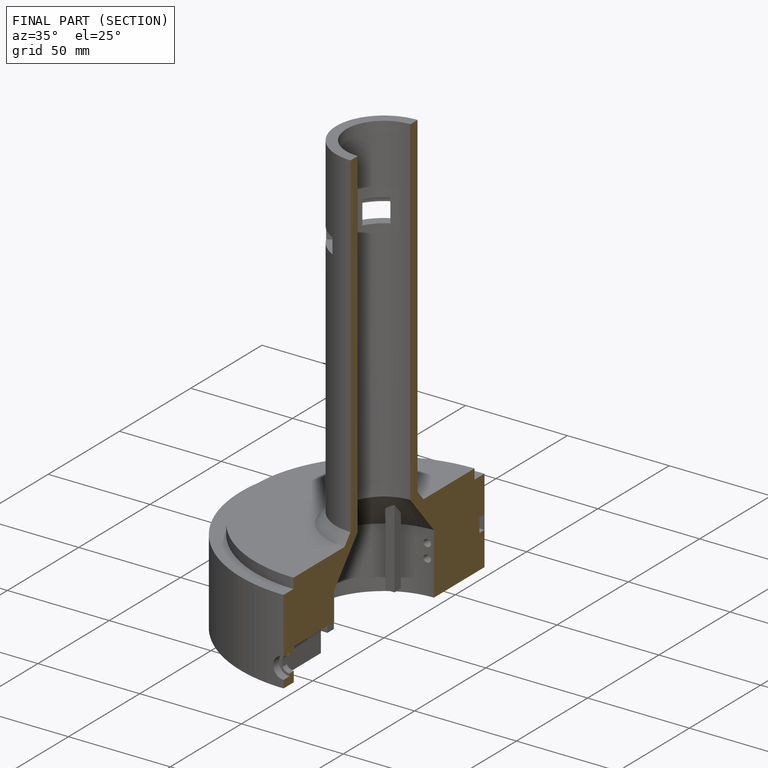
[diagram: finished part — half-section view (interior)]
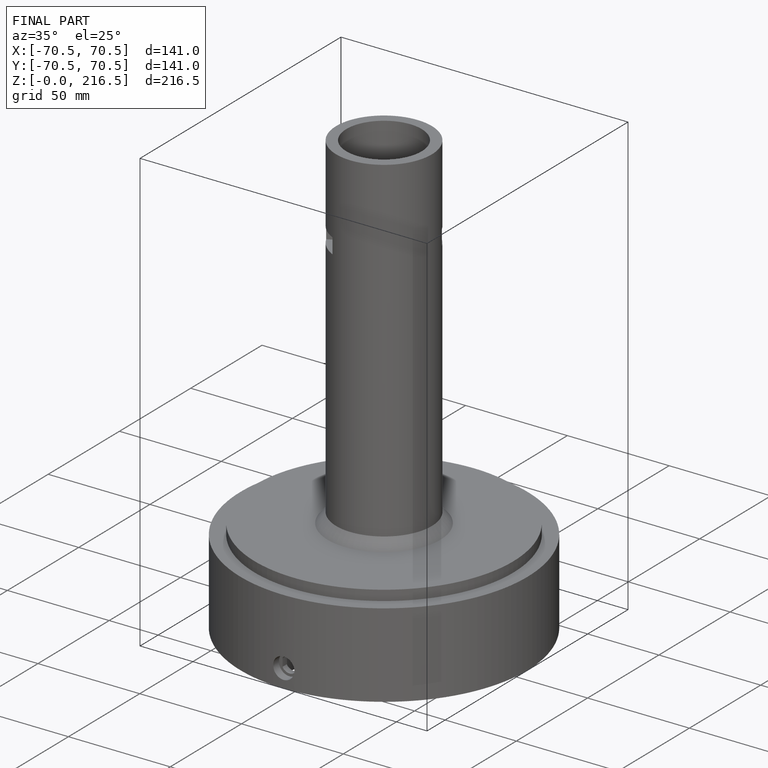
[diagram: finished part — iso view with bounding-box wireframe]
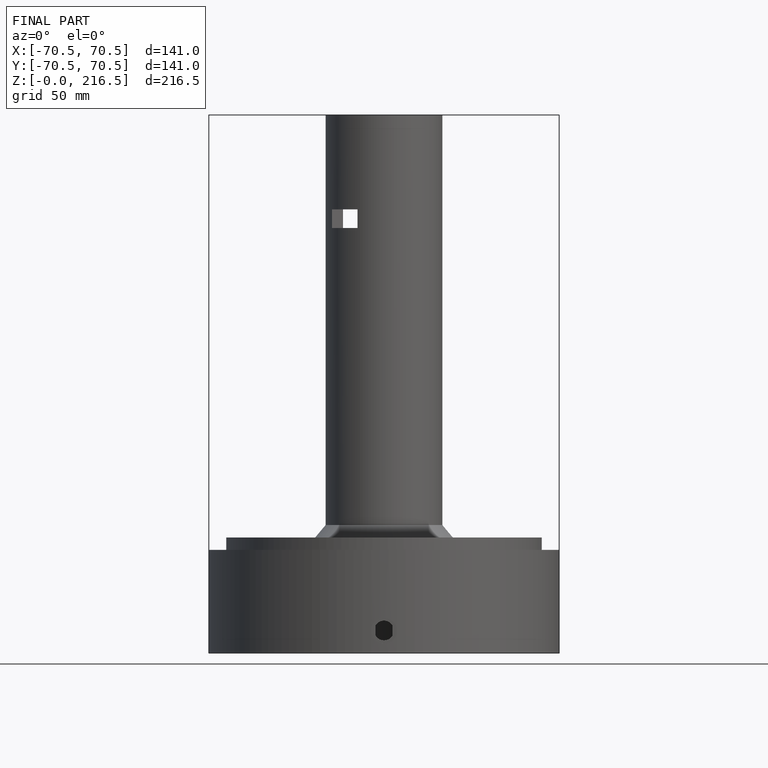
[diagram: finished part — front view with bounding-box wireframe]
